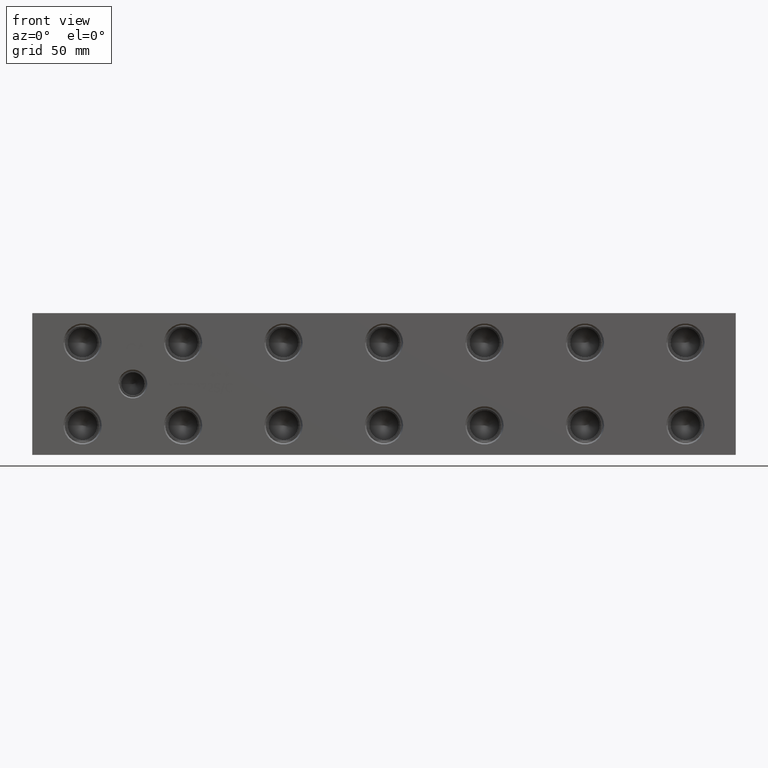
[diagram: clean part render]
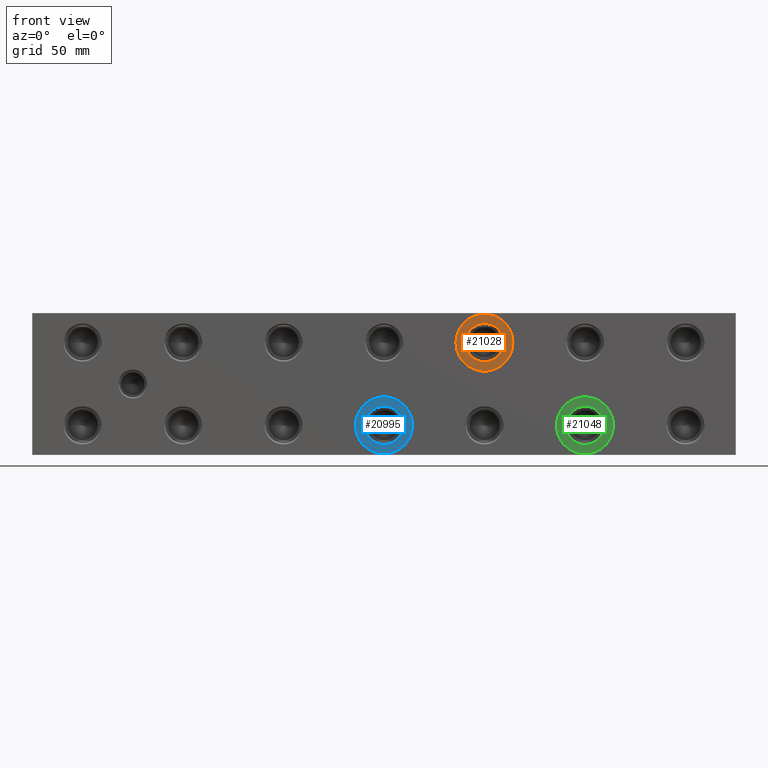
[diagram: same view with three faces highlighted in distinct colors, each labeled with its STEP entity id]
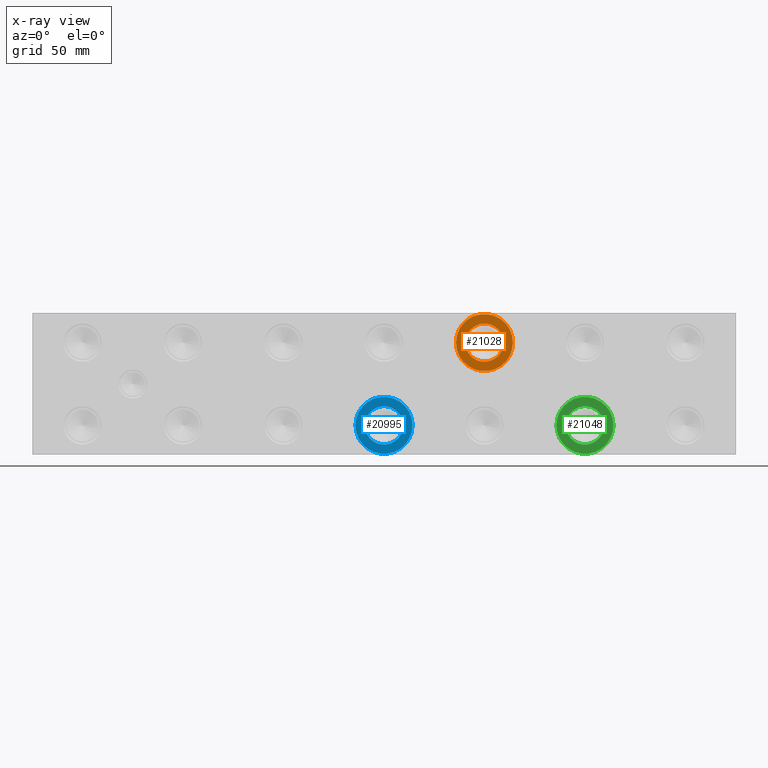
[diagram: x-ray of the same camera — body ghosted, the three highlighted faces saturated]
A machine part, front view with three faces highlighted in distinct colors.
The next image is the same camera in x-ray (body ghosted, the three faces saturated) — at least one of them is partly hidden behind the body in this view.
Their STEP definitions:

[orange] entity #21028 — the highlighted planar face has unit normal (0, 1, 0).
#495=CIRCLE('',#22057,15.3162);
#496=CIRCLE('',#22058,15.3162);
#497=CIRCLE('',#22060,10.2997);
#498=CIRCLE('',#22061,10.2997);
#1220=FACE_BOUND('',#3850,.T.);
#1812=PLANE('',#22059);
#2626=FACE_OUTER_BOUND('',#3849,.T.);
#3849=EDGE_LOOP('',(#17459,#17460));
#3850=EDGE_LOOP('',(#17461,#17462));
#9723=VERTEX_POINT('',#35366);
#9724=VERTEX_POINT('',#35368);
#9725=VERTEX_POINT('',#35372);
#9726=VERTEX_POINT('',#35373);
#12483=EDGE_CURVE('',#9723,#9724,#495,.T.);
#12484=EDGE_CURVE('',#9724,#9723,#496,.T.);
#12485=EDGE_CURVE('',#9725,#9726,#497,.T.);
#12486=EDGE_CURVE('',#9726,#9725,#498,.T.);
#17459=ORIENTED_EDGE('',*,*,#12484,.F.);
#17460=ORIENTED_EDGE('',*,*,#12483,.F.);
#17461=ORIENTED_EDGE('',*,*,#12485,.T.);
#17462=ORIENTED_EDGE('',*,*,#12486,.T.);
#21028=ADVANCED_FACE('',(#2626,#1220),#1812,.F.);
#22057=AXIS2_PLACEMENT_3D('',#35369,#25781,#25782);
#22058=AXIS2_PLACEMENT_3D('',#35370,#25783,#25784);
#22059=AXIS2_PLACEMENT_3D('',#35371,#25785,#25786);
#22060=AXIS2_PLACEMENT_3D('',#35374,#25787,#25788);
#22061=AXIS2_PLACEMENT_3D('',#35375,#25789,#25790);
#25781=DIRECTION('center_axis',(0.,1.,0.));
#25782=DIRECTION('ref_axis',(1.,0.,0.));
#25783=DIRECTION('center_axis',(0.,1.,0.));
#25784=DIRECTION('ref_axis',(1.,0.,0.));
#25785=DIRECTION('center_axis',(0.,1.,0.));
#25786=DIRECTION('ref_axis',(0.,0.,1.));
#25787=DIRECTION('center_axis',(0.,1.,0.));
#25788=DIRECTION('ref_axis',(1.,0.,0.));
#25789=DIRECTION('center_axis',(0.,1.,0.));
#25790=DIRECTION('ref_axis',(1.,0.,0.));
#35366=CARTESIAN_POINT('',(227.5586,0.7874,60.325));
#35368=CARTESIAN_POINT('',(258.191,0.7874,60.325));
#35369=CARTESIAN_POINT('Origin',(242.8748,0.7874,60.325));
#35370=CARTESIAN_POINT('Origin',(242.8748,0.7874,60.325));
#35371=CARTESIAN_POINT('Origin',(253.1745,0.7874,60.325));
#35372=CARTESIAN_POINT('',(253.1745,0.7874,60.325));
#35373=CARTESIAN_POINT('',(232.5751,0.7874,60.325));
#35374=CARTESIAN_POINT('Origin',(242.8748,0.7874,60.325));
#35375=CARTESIAN_POINT('Origin',(242.8748,0.7874,60.325));

[blue] entity #20995 — the highlighted planar face has unit normal (0, 1, 0).
#434=CIRCLE('',#21963,15.3162);
#435=CIRCLE('',#21964,15.3162);
#436=CIRCLE('',#21966,10.2997);
#437=CIRCLE('',#21967,10.2997);
#1214=FACE_BOUND('',#3811,.T.);
#1806=PLANE('',#21965);
#2593=FACE_OUTER_BOUND('',#3810,.T.);
#3810=EDGE_LOOP('',(#17279,#17280));
#3811=EDGE_LOOP('',(#17281,#17282));
#9661=VERTEX_POINT('',#35183);
#9662=VERTEX_POINT('',#35185);
#9663=VERTEX_POINT('',#35189);
#9664=VERTEX_POINT('',#35190);
#12395=EDGE_CURVE('',#9661,#9662,#434,.T.);
#12396=EDGE_CURVE('',#9662,#9661,#435,.T.);
#12397=EDGE_CURVE('',#9663,#9664,#436,.T.);
#12398=EDGE_CURVE('',#9664,#9663,#437,.T.);
#17279=ORIENTED_EDGE('',*,*,#12396,.F.);
#17280=ORIENTED_EDGE('',*,*,#12395,.F.);
#17281=ORIENTED_EDGE('',*,*,#12397,.T.);
#17282=ORIENTED_EDGE('',*,*,#12398,.T.);
#20995=ADVANCED_FACE('',(#2593,#1214),#1806,.F.);
#21963=AXIS2_PLACEMENT_3D('',#35186,#25566,#25567);
#21964=AXIS2_PLACEMENT_3D('',#35187,#25568,#25569);
#21965=AXIS2_PLACEMENT_3D('',#35188,#25570,#25571);
#21966=AXIS2_PLACEMENT_3D('',#35191,#25572,#25573);
#21967=AXIS2_PLACEMENT_3D('',#35192,#25574,#25575);
#25566=DIRECTION('center_axis',(0.,1.,0.));
#25567=DIRECTION('ref_axis',(1.,0.,0.));
#25568=DIRECTION('center_axis',(0.,1.,0.));
#25569=DIRECTION('ref_axis',(1.,0.,0.));
#25570=DIRECTION('center_axis',(0.,1.,0.));
#25571=DIRECTION('ref_axis',(0.,0.,1.));
#25572=DIRECTION('center_axis',(0.,1.,0.));
#25573=DIRECTION('ref_axis',(1.,0.,0.));
#25574=DIRECTION('center_axis',(0.,1.,0.));
#25575=DIRECTION('ref_axis',(1.,0.,0.));
#35183=CARTESIAN_POINT('',(173.5836,0.7874,15.875));
#35185=CARTESIAN_POINT('',(204.216,0.7874,15.875));
#35186=CARTESIAN_POINT('Origin',(188.8998,0.7874,15.875));
#35187=CARTESIAN_POINT('Origin',(188.8998,0.7874,15.875));
#35188=CARTESIAN_POINT('Origin',(199.1995,0.7874,15.875));
#35189=CARTESIAN_POINT('',(199.1995,0.7874,15.875));
#35190=CARTESIAN_POINT('',(178.6001,0.787399999999999,15.875));
#35191=CARTESIAN_POINT('Origin',(188.8998,0.7874,15.875));
#35192=CARTESIAN_POINT('Origin',(188.8998,0.7874,15.875));

[green] entity #21048 — the highlighted planar face has unit normal (0, 1, 0).
#531=CIRCLE('',#22113,15.3162);
#532=CIRCLE('',#22114,15.3162);
#533=CIRCLE('',#22116,10.2997);
#534=CIRCLE('',#22117,10.2997);
#1224=FACE_BOUND('',#3874,.T.);
#1816=PLANE('',#22115);
#2646=FACE_OUTER_BOUND('',#3873,.T.);
#3873=EDGE_LOOP('',(#17567,#17568));
#3874=EDGE_LOOP('',(#17569,#17570));
#9759=VERTEX_POINT('',#35474);
#9760=VERTEX_POINT('',#35476);
#9761=VERTEX_POINT('',#35480);
#9762=VERTEX_POINT('',#35481);
#12535=EDGE_CURVE('',#9759,#9760,#531,.T.);
#12536=EDGE_CURVE('',#9760,#9759,#532,.T.);
#12537=EDGE_CURVE('',#9761,#9762,#533,.T.);
#12538=EDGE_CURVE('',#9762,#9761,#534,.T.);
#17567=ORIENTED_EDGE('',*,*,#12536,.F.);
#17568=ORIENTED_EDGE('',*,*,#12535,.F.);
#17569=ORIENTED_EDGE('',*,*,#12537,.T.);
#17570=ORIENTED_EDGE('',*,*,#12538,.T.);
#21048=ADVANCED_FACE('',(#2646,#1224),#1816,.F.);
#22113=AXIS2_PLACEMENT_3D('',#35477,#25909,#25910);
#22114=AXIS2_PLACEMENT_3D('',#35478,#25911,#25912);
#22115=AXIS2_PLACEMENT_3D('',#35479,#25913,#25914);
#22116=AXIS2_PLACEMENT_3D('',#35482,#25915,#25916);
#22117=AXIS2_PLACEMENT_3D('',#35483,#25917,#25918);
#25909=DIRECTION('center_axis',(0.,1.,0.));
#25910=DIRECTION('ref_axis',(1.,0.,0.));
#25911=DIRECTION('center_axis',(0.,1.,0.));
#25912=DIRECTION('ref_axis',(1.,0.,0.));
#25913=DIRECTION('center_axis',(0.,1.,0.));
#25914=DIRECTION('ref_axis',(0.,0.,1.));
#25915=DIRECTION('center_axis',(0.,1.,0.));
#25916=DIRECTION('ref_axis',(1.,0.,0.));
#25917=DIRECTION('center_axis',(0.,1.,0.));
#25918=DIRECTION('ref_axis',(1.,0.,0.));
#35474=CARTESIAN_POINT('',(281.5336,0.7874,15.875));
#35476=CARTESIAN_POINT('',(312.166,0.7874,15.875));
#35477=CARTESIAN_POINT('Origin',(296.8498,0.7874,15.875));
#35478=CARTESIAN_POINT('Origin',(296.8498,0.7874,15.875));
#35479=CARTESIAN_POINT('Origin',(307.1495,0.7874,15.875));
#35480=CARTESIAN_POINT('',(307.1495,0.7874,15.875));
#35481=CARTESIAN_POINT('',(286.5501,0.7874,15.875));
#35482=CARTESIAN_POINT('Origin',(296.8498,0.7874,15.875));
#35483=CARTESIAN_POINT('Origin',(296.8498,0.7874,15.875));